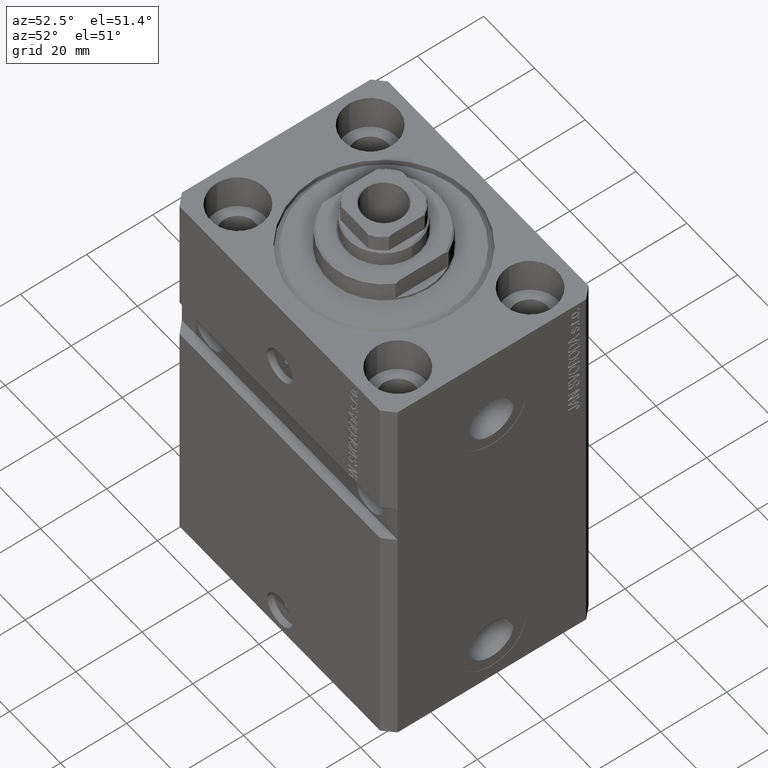
[diagram: clean part render]
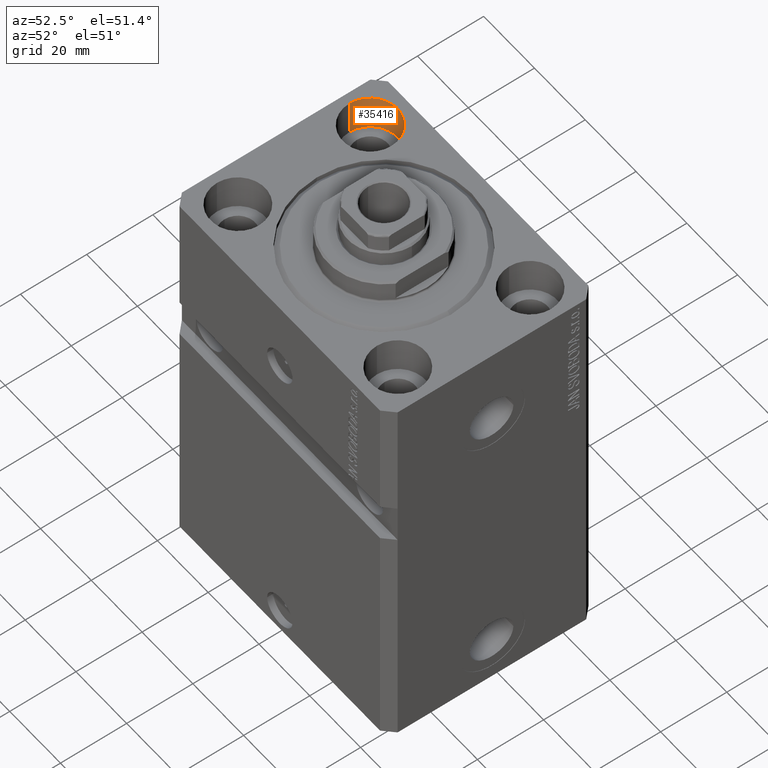
[diagram: same view with one face highlighted and labeled with its STEP entity id]
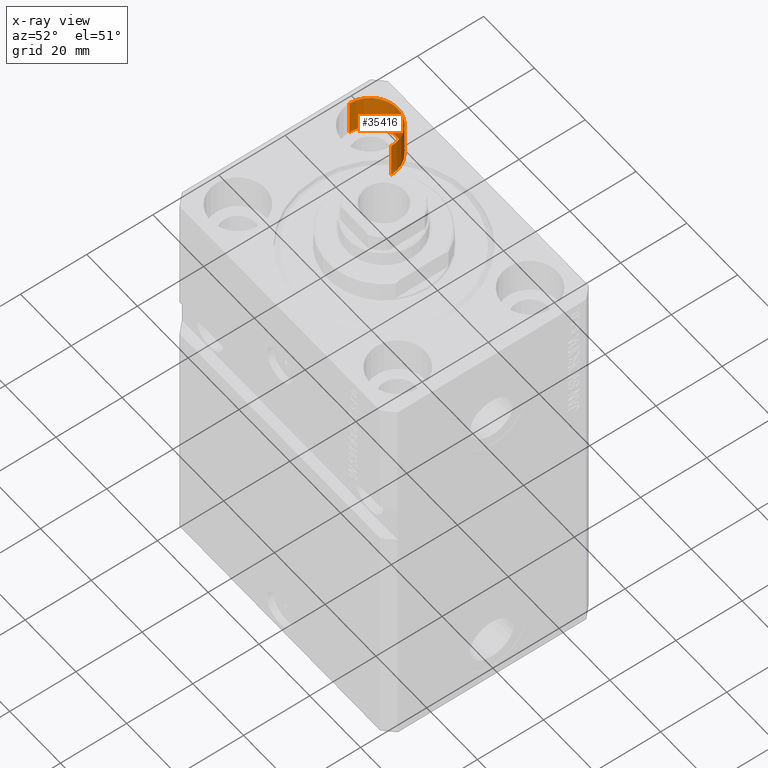
[diagram: x-ray of the same camera — body ghosted, the highlighted face saturated]
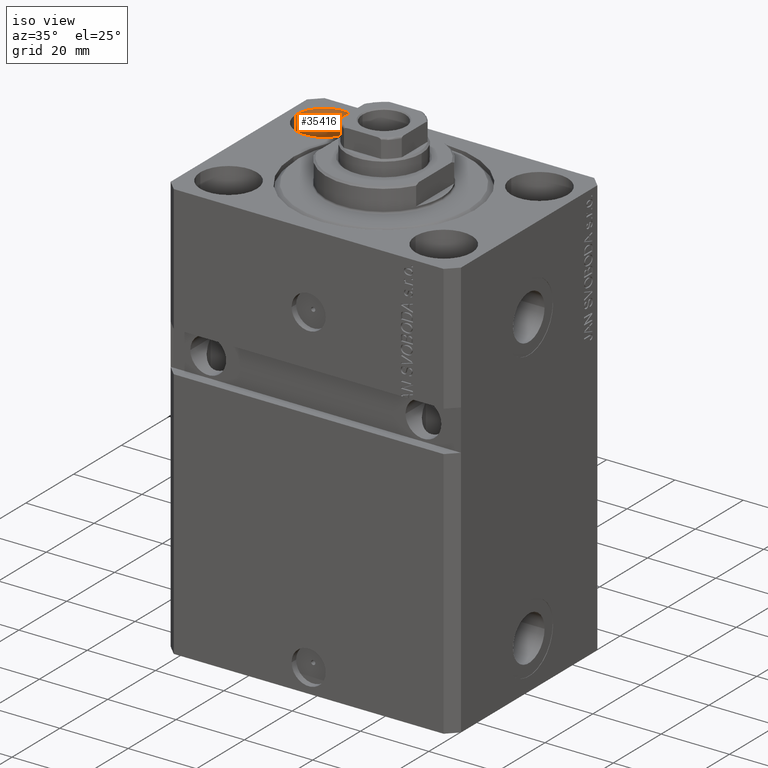
[diagram: same view with one face highlighted and labeled with its STEP entity id]
A machine part, auxiliary view. The second image highlights one B-rep face of the part: STEP entity #35416.
The next image is the same camera in x-ray: the body ghosted, the highlighted face saturated — about 1% of this face is hidden behind the body in this view.
A second angle (iso view) of the same face is appended — the face is thin or edge-on in the first view.
In plain terms, the highlighted cylindrical surface (edge-blend (fillet) strip) has radius 8.25 mm, axis along (0, 0, 1).
Its self-contained STEP definition (entity closure, byte-faithful):
#1275 = CARTESIAN_POINT ( 'NONE',  ( -23.25000000000000000, 20.00000000000000000, -11.00000000000000000 ) ) ;
#1576 = VERTEX_POINT ( 'NONE', #25918 ) ;
#2845 = EDGE_LOOP ( 'NONE', ( #29829, #3767, #34844, #3942 ) ) ;
#3767 = ORIENTED_EDGE ( 'NONE', *, *, #15050, .F. ) ;
#3942 = ORIENTED_EDGE ( 'NONE', *, *, #5876, .T. ) ;
#4043 = DIRECTION ( 'NONE',  ( -0.000000000000000000, -0.000000000000000000, 1.000000000000000000 ) ) ;
#4079 = AXIS2_PLACEMENT_3D ( 'NONE', #20818, #4043, #23768 ) ;
#5876 = EDGE_CURVE ( 'NONE', #17417, #1576, #5894, .T. ) ;
#5894 = CIRCLE ( 'NONE', #35607, 8.250000000000000000 ) ;
#6052 = AXIS2_PLACEMENT_3D ( 'NONE', #13707, #14153, #24363 ) ;
#9212 = DIRECTION ( 'NONE',  ( 0.000000000000000000, 0.000000000000000000, 1.000000000000000000 ) ) ;
#10513 = CARTESIAN_POINT ( 'NONE',  ( -23.25000000000000000, 20.00000000000000000, -11.00000000000000000 ) ) ;
#13560 = CYLINDRICAL_SURFACE ( 'NONE', #4079, 8.250000000000000000 ) ;
#13678 = LINE ( 'NONE', #10513, #26233 ) ;
#13707 = CARTESIAN_POINT ( 'NONE',  ( -31.50000000000000000, 20.00000000000000000, -11.00000000000000000 ) ) ;
#14153 = DIRECTION ( 'NONE',  ( 0.000000000000000000, 0.000000000000000000, 1.000000000000000000 ) ) ;
#15050 = EDGE_CURVE ( 'NONE', #38302, #42934, #28523, .T. ) ;
#16013 = CARTESIAN_POINT ( 'NONE',  ( -31.50000000000000000, 20.00000000000000000, 0.000000000000000000 ) ) ;
#16443 = LINE ( 'NONE', #23244, #36089 ) ;
#17307 = DIRECTION ( 'NONE',  ( -0.000000000000000000, -0.000000000000000000, 1.000000000000000000 ) ) ;
#17417 = VERTEX_POINT ( 'NONE', #28578 ) ;
#19400 = DIRECTION ( 'NONE',  ( -0.000000000000000000, -0.000000000000000000, 1.000000000000000000 ) ) ;
#20818 = CARTESIAN_POINT ( 'NONE',  ( -31.50000000000000000, 20.00000000000000000, -11.00000000000000000 ) ) ;
#22464 = EDGE_CURVE ( 'NONE', #38302, #17417, #13678, .T. ) ;
#23244 = CARTESIAN_POINT ( 'NONE',  ( -39.75000000000000000, 20.00000000000000000, -11.00000000000000000 ) ) ;
#23768 = DIRECTION ( 'NONE',  ( 1.000000000000000000, 0.000000000000000000, 0.000000000000000000 ) ) ;
#24363 = DIRECTION ( 'NONE',  ( 1.000000000000000000, 0.000000000000000000, 0.000000000000000000 ) ) ;
#25918 = CARTESIAN_POINT ( 'NONE',  ( -39.75000000000000000, 20.00000000000000000, 0.000000000000000000 ) ) ;
#26124 = CARTESIAN_POINT ( 'NONE',  ( -39.75000000000000000, 20.00000000000000000, -11.00000000000000000 ) ) ;
#26233 = VECTOR ( 'NONE', #17307, 1000.000000000000000 ) ;
#28523 = CIRCLE ( 'NONE', #6052, 8.250000000000000000 ) ;
#28578 = CARTESIAN_POINT ( 'NONE',  ( -23.25000000000000000, 20.00000000000000000, 0.000000000000000000 ) ) ;
#29829 = ORIENTED_EDGE ( 'NONE', *, *, #41254, .F. ) ;
#30803 = FACE_OUTER_BOUND ( 'NONE', #2845, .T. ) ;
#34844 = ORIENTED_EDGE ( 'NONE', *, *, #22464, .T. ) ;
#35416 = ADVANCED_FACE ( 'NONE', ( #30803 ), #13560, .F. ) ;
#35607 = AXIS2_PLACEMENT_3D ( 'NONE', #16013, #9212, #44129 ) ;
#36089 = VECTOR ( 'NONE', #19400, 1000.000000000000000 ) ;
#38302 = VERTEX_POINT ( 'NONE', #1275 ) ;
#41254 = EDGE_CURVE ( 'NONE', #42934, #1576, #16443, .T. ) ;
#42934 = VERTEX_POINT ( 'NONE', #26124 ) ;
#44129 = DIRECTION ( 'NONE',  ( 1.000000000000000000, 0.000000000000000000, 0.000000000000000000 ) ) ;